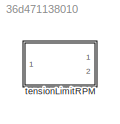
MODEL slx_36d471138010
KIND library
CONFIG AbsTol = auto
CONFIG EnableMultiTasking = off
CONFIG FixedStep = auto
CONFIG MaxStep = auto
CONFIG MinStep = auto
CONFIG RelTol = 1e-3
CONFIG SampleTimeConstraint = Unconstrained
CONFIG SolverName = VariableStepAuto
CONFIG StartTime = 0.0
CONFIG StopTime = 10.0
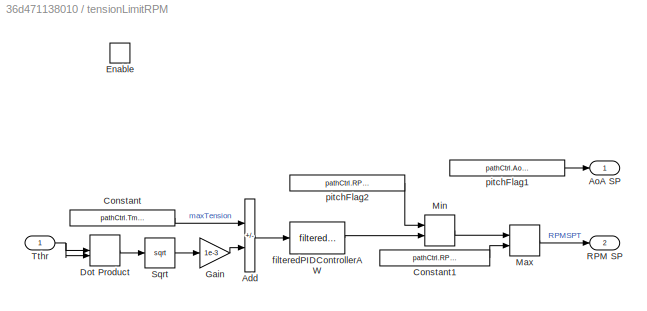
BLOCK [SubSystem] tensionLimitRPM
  Ports = [1, 2, 1]
  RequestExecContextInheritance = off
BLOCK [Sum] tensionLimitRPM/Add
  IconShape = rectangular
  Inputs = +-
  Ports = [2, 1]
BLOCK [Outport] tensionLimitRPM/AoA SP
BLOCK [Constant] tensionLimitRPM/Constant
  Value = pathCtrl.Tmax.Value
BLOCK [Constant] tensionLimitRPM/Constant1
  Value = pathCtrl.RPMmax.Value
BLOCK [DotProduct] tensionLimitRPM/Dot Product
  OutDataTypeStr = Inherit: Inherit via internal rule
BLOCK [EnablePort] tensionLimitRPM/Enable
  Ports = []
BLOCK [Gain] tensionLimitRPM/Gain
  Gain = 1e-3
BLOCK [MinMax] tensionLimitRPM/Max
  Inputs = 2
  Ports = [2, 1]
BLOCK [MinMax] tensionLimitRPM/Min
  Function = max
  Inputs = 2
  Ports = [2, 1]
BLOCK [Outport] tensionLimitRPM/RPM SP
  Port = 2
BLOCK [Sqrt] tensionLimitRPM/Sqrt
BLOCK [Inport] tensionLimitRPM/Tthr
BLOCK [Reference] tensionLimitRPM/filteredPIDControllerAW  REF=filteredPIDControllerAW_ul/filteredPIDControllerAW
  Ports = [1, 1]
  SourceBlock = filteredPIDControllerAW_ul/filteredPIDControllerAW
BLOCK [Constant] tensionLimitRPM/pitchFlag1
  Value = pathCtrl.AoAConst.Value
BLOCK [Constant] tensionLimitRPM/pitchFlag2
  Value = pathCtrl.RPMConst.Value
LINE tensionLimitRPM/Add:1 -> tensionLimitRPM/filteredPIDControllerAW:1
LINE tensionLimitRPM/Constant1:1 -> tensionLimitRPM/Max:2
LINE tensionLimitRPM/Constant:1 -> tensionLimitRPM/Add:1
LINE tensionLimitRPM/Dot Product:1 -> tensionLimitRPM/Sqrt:1
LINE tensionLimitRPM/Gain:1 -> tensionLimitRPM/Add:2
LINE tensionLimitRPM/Max:1 -> tensionLimitRPM/RPM SP:1
LINE tensionLimitRPM/Min:1 -> tensionLimitRPM/Max:1
LINE tensionLimitRPM/Sqrt:1 -> tensionLimitRPM/Gain:1
NET tensionLimitRPM/Tthr:1 -> tensionLimitRPM/Dot Product:1, tensionLimitRPM/Dot Product:2
LINE tensionLimitRPM/filteredPIDControllerAW:1 -> tensionLimitRPM/Min:2
LINE tensionLimitRPM/pitchFlag1:1 -> tensionLimitRPM/AoA SP:1
LINE tensionLimitRPM/pitchFlag2:1 -> tensionLimitRPM/Min:1
note: NET lines group one-source signal fan-out (src -> all destinations, sorted); 1:1 wires keep LINE
